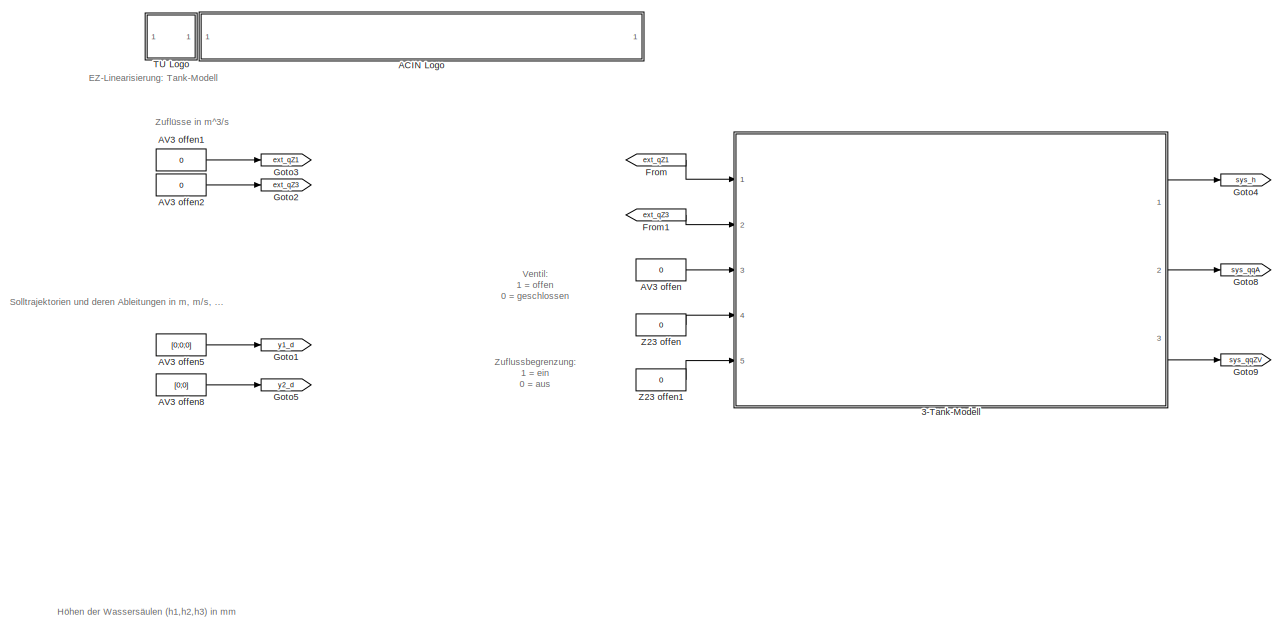
[diagram: root canvas - part 1/2, full width, top band]
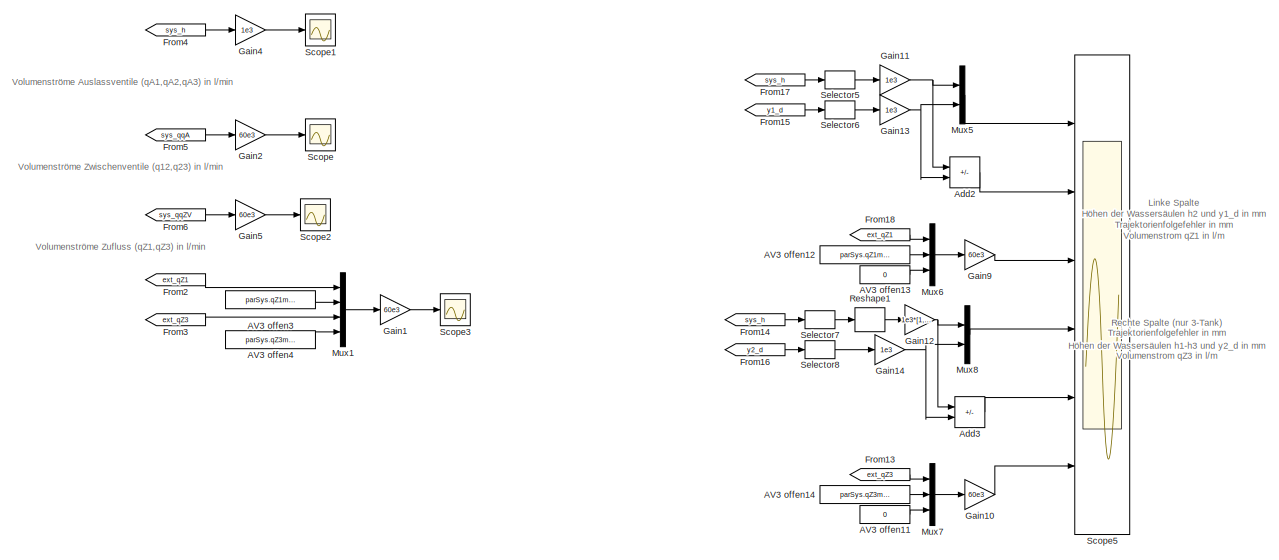
[diagram: root canvas - part 2/2, full width, bottom band]
MODEL slx_ab9c6cecb5b5
KIND model
CONFIG AbsTol = auto
CONFIG EnableMultiTasking = off
CONFIG FixedStep = auto
CONFIG MaxStep = auto
CONFIG MinStep = auto
CONFIG RelTol = 1e-3
CONFIG SampleTimeConstraint = Unconstrained
CONFIG SolverName = ode45
CONFIG StartTime = 0.0
CONFIG StopTime = 1200
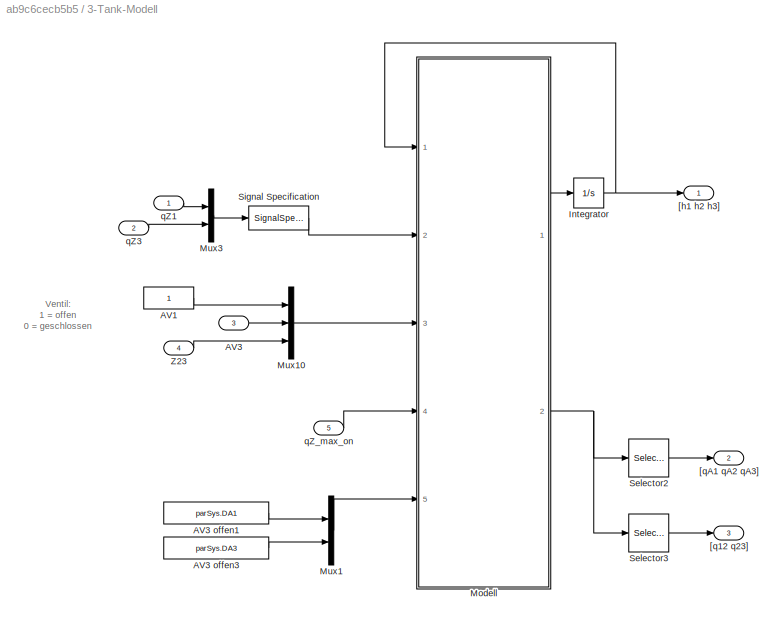
BLOCK [SubSystem] 3-Tank-Modell
  Ports = [5, 3]
  RequestExecContextInheritance = off
  UserDataPersistent = on
BLOCK [Constant] 3-Tank-Modell/AV1
BLOCK [Inport] 3-Tank-Modell/AV3
  Port = 3
BLOCK [Constant] 3-Tank-Modell/AV3 offen1
  Value = parSys.DA1
BLOCK [Constant] 3-Tank-Modell/AV3 offen3
  Value = parSys.DA3
BLOCK [Integrator] 3-Tank-Modell/Integrator
  InitialCondition = [parSys.h1_0;parSys.h2_0;parSys.h3_0]
  Ports = [1, 1]
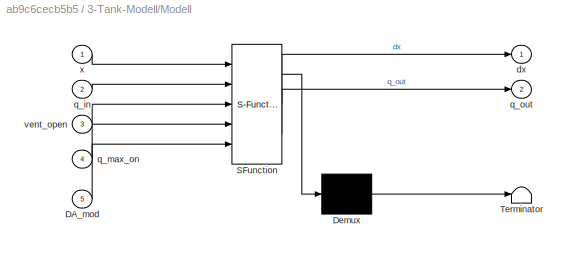
BLOCK [SubSystem] 3-Tank-Modell/Modell
  ErrorFcn = Stateflow.Translate.translate
  PermitHierarchicalResolution = ExplicitOnly
  Ports = [5, 2]
  RequestExecContextInheritance = off
  SFBlockType = MATLAB Function
  TreatAsAtomicUnit = on
BLOCK [Demux] 3-Tank-Modell/Modell/ Demux 
  Outputs = 1
  Ports = [1, 1]
BLOCK [S-Function] 3-Tank-Modell/Modell/ SFunction 
  EnableBusSupport = off
  FunctionName = sf_sfun
  Parameters = parSys
  PortCounts = [5 3]
  Ports = [5, 3]
  SFcnIsStateOwnerBlock = off
  SFunctionDeploymentMode = off
  Tag = Stateflow S-Function 5
BLOCK [Terminator] 3-Tank-Modell/Modell/ Terminator 
BLOCK [Inport] 3-Tank-Modell/Modell/DA_mod
  Port = 5
BLOCK [Outport] 3-Tank-Modell/Modell/dx
  VectorParamsAs1DForOutWhenUnconnected = off
BLOCK [Inport] 3-Tank-Modell/Modell/q_in
  Port = 2
BLOCK [Inport] 3-Tank-Modell/Modell/q_max_on
  Port = 4
BLOCK [Outport] 3-Tank-Modell/Modell/q_out
  Port = 2
  VectorParamsAs1DForOutWhenUnconnected = off
BLOCK [Inport] 3-Tank-Modell/Modell/vent_open
  Port = 3
BLOCK [Inport] 3-Tank-Modell/Modell/x
BLOCK [Mux] 3-Tank-Modell/Mux1
  DisplayOption = bar
  Inputs = 2
  Ports = [2, 1]
BLOCK [Mux] 3-Tank-Modell/Mux10
  DisplayOption = bar
  Inputs = 3
  Ports = [3, 1]
BLOCK [Mux] 3-Tank-Modell/Mux3
  DisplayOption = bar
  Inputs = 2
  Ports = [2, 1]
BLOCK [Selector] 3-Tank-Modell/Selector2
  IndexOptions = Index vector (dialog)
  Indices = [1 2 3]
  InputPortWidth = 5
  OutputSizes = 1
  Ports = [1, 1]
BLOCK [Selector] 3-Tank-Modell/Selector3
  IndexOptions = Index vector (dialog)
  Indices = [4 5]
  InputPortWidth = 5
  OutputSizes = 1
  Ports = [1, 1]
BLOCK [SignalSpecification] 3-Tank-Modell/Signal Specification
  Dimensions = 2
BLOCK [Inport] 3-Tank-Modell/Z23
  Port = 4
BLOCK [Outport] 3-Tank-Modell/[h1 h2 h3]
  VectorParamsAs1DForOutWhenUnconnected = off
BLOCK [Outport] 3-Tank-Modell/[q12 q23]
  Port = 3
  VectorParamsAs1DForOutWhenUnconnected = off
BLOCK [Outport] 3-Tank-Modell/[qA1 qA2 qA3]
  Port = 2
  VectorParamsAs1DForOutWhenUnconnected = off
BLOCK [Inport] 3-Tank-Modell/qZ1
BLOCK [Inport] 3-Tank-Modell/qZ3
  Port = 2
BLOCK [Inport] 3-Tank-Modell/qZ_max_on
  Port = 5
BLOCK [SubSystem] ACIN Logo
  Ports = []
  RequestExecContextInheritance = off
  UserDataPersistent = on
BLOCK [Constant] AV3 offen
  Value = 0
BLOCK [Constant] AV3 offen1
  Value = 0
BLOCK [Constant] AV3 offen11
  Value = 0
BLOCK [Constant] AV3 offen12
  SampleTime = parSys.Ta
  Value = parSys.qZ1max
BLOCK [Constant] AV3 offen13
  Value = 0
BLOCK [Constant] AV3 offen14
  SampleTime = parSys.Ta
  Value = parSys.qZ3max
BLOCK [Constant] AV3 offen2
  Value = 0
BLOCK [Constant] AV3 offen3
  SampleTime = parSys.Ta
  Value = parSys.qZ1max
BLOCK [Constant] AV3 offen4
  SampleTime = parSys.Ta
  Value = parSys.qZ3max
BLOCK [Constant] AV3 offen5
  Value = [0;0;0]
BLOCK [Constant] AV3 offen8
  Value = [0;0]
BLOCK [Sum] Add2
  IconShape = rectangular
  Inputs = +-
  Ports = [2, 1]
BLOCK [Sum] Add3
  IconShape = rectangular
  Inputs = +-
  Ports = [2, 1]
BLOCK [From] From
  GotoTag = ext_qZ1
  TagVisibility = global
BLOCK [From] From1
  GotoTag = ext_qZ3
  TagVisibility = global
BLOCK [From] From13
  GotoTag = ext_qZ3
  TagVisibility = global
BLOCK [From] From14
  GotoTag = sys_h
  TagVisibility = global
BLOCK [From] From15
  GotoTag = y1_d
  TagVisibility = global
BLOCK [From] From16
  GotoTag = y2_d
  TagVisibility = global
BLOCK [From] From17
  GotoTag = sys_h
  TagVisibility = global
BLOCK [From] From18
  GotoTag = ext_qZ1
  TagVisibility = global
BLOCK [From] From2
  GotoTag = ext_qZ1
  TagVisibility = global
BLOCK [From] From3
  GotoTag = ext_qZ3
  TagVisibility = global
BLOCK [From] From4
  GotoTag = sys_h
  TagVisibility = global
BLOCK [From] From5
  GotoTag = sys_qqA
  TagVisibility = global
BLOCK [From] From6
  GotoTag = sys_qqZV
  TagVisibility = global
BLOCK [Gain] Gain1
  Gain = 60e3
BLOCK [Gain] Gain10
  Gain = 60e3
BLOCK [Gain] Gain11
  Gain = 1e3
BLOCK [Gain] Gain12
  Gain = 1e3*[1,-1]
  Multiplication = Matrix(K*u)
BLOCK [Gain] Gain13
  Gain = 1e3
BLOCK [Gain] Gain14
  Gain = 1e3
BLOCK [Gain] Gain2
  Gain = 60e3
BLOCK [Gain] Gain4
  Gain = 1e3
BLOCK [Gain] Gain5
  Gain = 60e3
BLOCK [Gain] Gain9
  Gain = 60e3
BLOCK [Goto] Goto1
  GotoTag = y1_d
  TagVisibility = global
BLOCK [Goto] Goto2
  GotoTag = ext_qZ3
  TagVisibility = global
BLOCK [Goto] Goto3
  GotoTag = ext_qZ1
  TagVisibility = global
BLOCK [Goto] Goto4
  GotoTag = sys_h
  TagVisibility = global
BLOCK [Goto] Goto5
  GotoTag = y2_d
  TagVisibility = global
BLOCK [Goto] Goto8
  GotoTag = sys_qqA
  TagVisibility = global
BLOCK [Goto] Goto9
  GotoTag = sys_qqZV
  TagVisibility = global
BLOCK [Mux] Mux1
  DisplayOption = bar
  Ports = [4, 1]
BLOCK [Mux] Mux5
  DisplayOption = bar
  Inputs = 2
  Ports = [2, 1]
BLOCK [Mux] Mux6
  DisplayOption = bar
  Inputs = 3
  Ports = [3, 1]
BLOCK [Mux] Mux7
  DisplayOption = bar
  Inputs = 3
  Ports = [3, 1]
BLOCK [Mux] Mux8
  DisplayOption = bar
  Inputs = 2
  Ports = [2, 1]
BLOCK [Reshape] Reshape1
  OutputDimensionality = Column vector (2-D)
  Ports = [1, 1]
BLOCK [Scope] Scope
  Floating = off
  NumInputPorts = 1
  Ports = [1]
  ScopeSpecificationString = Simulink.scopes.TimeScopeBlockCfg('CurrentConfiguration', extmgr.ConfigurationSet(extmgr.Configuration('Core','General UI',true),extmgr.Configuration('Core','Source UI',true),extmgr.Configuration('Sources','WiredSimulink',true,'DataLoggingSaveFormat','Array','DataLoggingDecimation','1','DataLoggingDecimateData',true),extmgr.Configuration('Visuals','Time Domain',true,'DisplayPropertyDefaults',struc...<+824ch>
BLOCK [Scope] Scope1
  Floating = off
  NumInputPorts = 1
  Ports = [1]
  ScopeSpecificationString = Simulink.scopes.TimeScopeBlockCfg('CurrentConfiguration', extmgr.ConfigurationSet(extmgr.Configuration('Core','General UI',true),extmgr.Configuration('Core','Source UI',true),extmgr.Configuration('Sources','WiredSimulink',true,'DataLoggingVariableName','ScopeData1','DataLoggingSaveFormat','Array','DataLoggingDecimation','1','DataLoggingDecimateData',true),extmgr.Configuration('Visuals','Time Domai...<+863ch>
BLOCK [Scope] Scope2
  Floating = off
  NumInputPorts = 1
  Ports = [1]
  ScopeSpecificationString = Simulink.scopes.TimeScopeBlockCfg('CurrentConfiguration', extmgr.ConfigurationSet(extmgr.Configuration('Core','General UI',true),extmgr.Configuration('Core','Source UI',true),extmgr.Configuration('Sources','WiredSimulink',true,'DataLoggingVariableName','ScopeData2','DataLoggingSaveFormat','Array','DataLoggingDecimation','1','DataLoggingDecimateData',true),extmgr.Configuration('Visuals','Time Domai...<+863ch>
BLOCK [Scope] Scope3
  Floating = off
  NumInputPorts = 1
  Ports = [1]
  ScopeSpecificationString = Simulink.scopes.TimeScopeBlockCfg('CurrentConfiguration', extmgr.ConfigurationSet(extmgr.Configuration('Core','General UI',true),extmgr.Configuration('Core','Source UI',true),extmgr.Configuration('Sources','WiredSimulink',true,'DataLoggingVariableName','ScopeData3','DataLoggingSaveFormat','Array','DataLoggingDecimation','1','DataLoggingDecimateData',true),extmgr.Configuration('Visuals','Time Domai...<+863ch>
BLOCK [Scope] Scope5
  Floating = off
  NumInputPorts = 6
  Ports = [6]
  ScopeSpecificationString = Simulink.scopes.TimeScopeBlockCfg('CurrentConfiguration', extmgr.ConfigurationSet(extmgr.Configuration('Core','General UI',true),extmgr.Configuration('Core','Source UI',true),extmgr.Configuration('Sources','WiredSimulink',true,'DataLoggingVariableName','ScopeData5','DataLoggingSaveFormat','Array','DataLoggingDecimation','1','DataLoggingDecimateData',true),extmgr.Configuration('Visuals','Time Domai...<+5106ch>
BLOCK [Selector] Selector5
  IndexOptions = Index vector (dialog)
  Indices = [2]
  InputPortWidth = 3
  OutputSizes = 1
  Ports = [1, 1]
BLOCK [Selector] Selector6
  IndexOptions = Index vector (dialog)
  Indices = [1]
  InputPortWidth = 3
  OutputSizes = 1
  Ports = [1, 1]
BLOCK [Selector] Selector7
  IndexOptions = Index vector (dialog)
  Indices = [1 3]
  InputPortWidth = 3
  OutputSizes = 1
  Ports = [1, 1]
BLOCK [Selector] Selector8
  IndexOptions = Index vector (dialog)
  Indices = [1]
  InputPortWidth = 2
  OutputSizes = 1
  Ports = [1, 1]
BLOCK [SubSystem] TU Logo
  Ports = []
  RequestExecContextInheritance = off
  UserDataPersistent = on
BLOCK [Constant] Z23 offen
  Value = 0
BLOCK [Constant] Z23 offen1
  Value = 0
ANNOTATION (root): EZ-Linearisierung: Tank-Modell
ANNOTATION (root): Höhen der Wassersäulen (h1,h2,h3) in mm
ANNOTATION (root): Linke Spalte Höhen der Wassersäulen h2 und y1_d in mm Trajektorienfolgefehler in mm Volumenstrom qZ1 in l/m
ANNOTATION (root): Rechte Spalte (nur 3-Tank) Höhen der Wassersäulen h1-h3 und y2_d in mm Trajektorienfolgefehler in mm Volumenstrom qZ3 in l/m
ANNOTATION (root): Solltrajektorien und deren Ableitungen in m, m/s, ...
ANNOTATION (root): Ventil: 1 = offen 0 = geschlossen
ANNOTATION (root): Volumenströme Auslassventile (qA1,qA2,qA3) in l/min
ANNOTATION (root): Volumenströme Zufluss (qZ1,qZ3) in l/min
ANNOTATION (root): Volumenströme Zwischenventile (q12,q23) in l/min
ANNOTATION (root): Zuflussbegrenzung: 1 = ein 0 = aus
ANNOTATION (root): Zuflüsse in m^3/s
ANNOTATION 3-Tank-Modell: Ventil: 1 = offen 0 = geschlossen
LINE 3-Tank-Modell/AV1:1 -> 3-Tank-Modell/Mux10:1
LINE 3-Tank-Modell/AV3 offen1:1 -> 3-Tank-Modell/Mux1:1
LINE 3-Tank-Modell/AV3 offen3:1 -> 3-Tank-Modell/Mux1:2
LINE 3-Tank-Modell/AV3:1 -> 3-Tank-Modell/Mux10:2
NET 3-Tank-Modell/Integrator:1 -> 3-Tank-Modell/Modell:1, 3-Tank-Modell/[h1 h2 h3]:1
LINE 3-Tank-Modell/Modell:1 -> 3-Tank-Modell/Integrator:1
NET 3-Tank-Modell/Modell:2 -> 3-Tank-Modell/Selector2:1, 3-Tank-Modell/Selector3:1
LINE 3-Tank-Modell/Mux10:1 -> 3-Tank-Modell/Modell:3
LINE 3-Tank-Modell/Mux1:1 -> 3-Tank-Modell/Modell:5
LINE 3-Tank-Modell/Mux3:1 -> 3-Tank-Modell/Signal Specification:1
LINE 3-Tank-Modell/Selector2:1 -> 3-Tank-Modell/[qA1 qA2 qA3]:1
LINE 3-Tank-Modell/Selector3:1 -> 3-Tank-Modell/[q12 q23]:1
LINE 3-Tank-Modell/Signal Specification:1 -> 3-Tank-Modell/Modell:2
LINE 3-Tank-Modell/Z23:1 -> 3-Tank-Modell/Mux10:3
LINE 3-Tank-Modell/qZ1:1 -> 3-Tank-Modell/Mux3:1
LINE 3-Tank-Modell/qZ3:1 -> 3-Tank-Modell/Mux3:2
LINE 3-Tank-Modell/qZ_max_on:1 -> 3-Tank-Modell/Modell:4
LINE 3-Tank-Modell:1 -> Goto4:1
LINE 3-Tank-Modell:2 -> Goto8:1
LINE 3-Tank-Modell:3 -> Goto9:1
LINE AV3 offen11:1 -> Mux7:3
LINE AV3 offen12:1 -> Mux6:2
LINE AV3 offen13:1 -> Mux6:3
LINE AV3 offen14:1 -> Mux7:2
LINE AV3 offen1:1 -> Goto3:1
LINE AV3 offen2:1 -> Goto2:1
LINE AV3 offen3:1 -> Mux1:2
LINE AV3 offen4:1 -> Mux1:4
LINE AV3 offen5:1 -> Goto1:1
LINE AV3 offen8:1 -> Goto5:1
LINE AV3 offen:1 -> 3-Tank-Modell:3
LINE Add2:1 -> Scope5:2
LINE Add3:1 -> Scope5:5
LINE From13:1 -> Mux7:1
LINE From14:1 -> Selector7:1
LINE From15:1 -> Selector6:1
LINE From16:1 -> Selector8:1
LINE From17:1 -> Selector5:1
LINE From18:1 -> Mux6:1
LINE From1:1 -> 3-Tank-Modell:2
LINE From2:1 -> Mux1:1
LINE From3:1 -> Mux1:3
LINE From4:1 -> Gain4:1
LINE From5:1 -> Gain2:1
LINE From6:1 -> Gain5:1
LINE From:1 -> 3-Tank-Modell:1
LINE Gain10:1 -> Scope5:6
NET Gain11:1 -> Add2:1, Mux5:1
NET Gain12:1 -> Add3:1, Mux8:1
NET Gain13:1 -> Add2:2, Mux5:2
NET Gain14:1 -> Add3:2, Mux8:2
LINE Gain1:1 -> Scope3:1
LINE Gain2:1 -> Scope:1
LINE Gain4:1 -> Scope1:1
LINE Gain5:1 -> Scope2:1
LINE Gain9:1 -> Scope5:3
LINE Mux1:1 -> Gain1:1
LINE Mux5:1 -> Scope5:1
LINE Mux6:1 -> Gain9:1
LINE Mux7:1 -> Gain10:1
LINE Mux8:1 -> Scope5:4
LINE Reshape1:1 -> Gain12:1
LINE Selector5:1 -> Gain11:1
LINE Selector6:1 -> Gain13:1
LINE Selector7:1 -> Reshape1:1
LINE Selector8:1 -> Gain14:1
LINE Z23 offen1:1 -> 3-Tank-Modell:5
LINE Z23 offen:1 -> 3-Tank-Modell:4
note: NET lines group one-source signal fan-out (src -> all destinations, sorted); 1:1 wires keep LINE
CHART 3-Tank-Modell/Modell states=1 transitions=1
  STATE_LABEL 'eML_blk_kernel()'
  STATE_LABEL 'SCRIPT:\nfunction [dx,q_out] = fcn(x,q_in,vent_open,q_max_on,DA_mod,parSys)\n%#codegen\n\n[dx,q_out] = Wassertank_mfun(x,q_in,vent_open,q_max_on,DA_mod,parSys);\n\n\n% Function end\nend'
CHART  states=0 transitions=0
